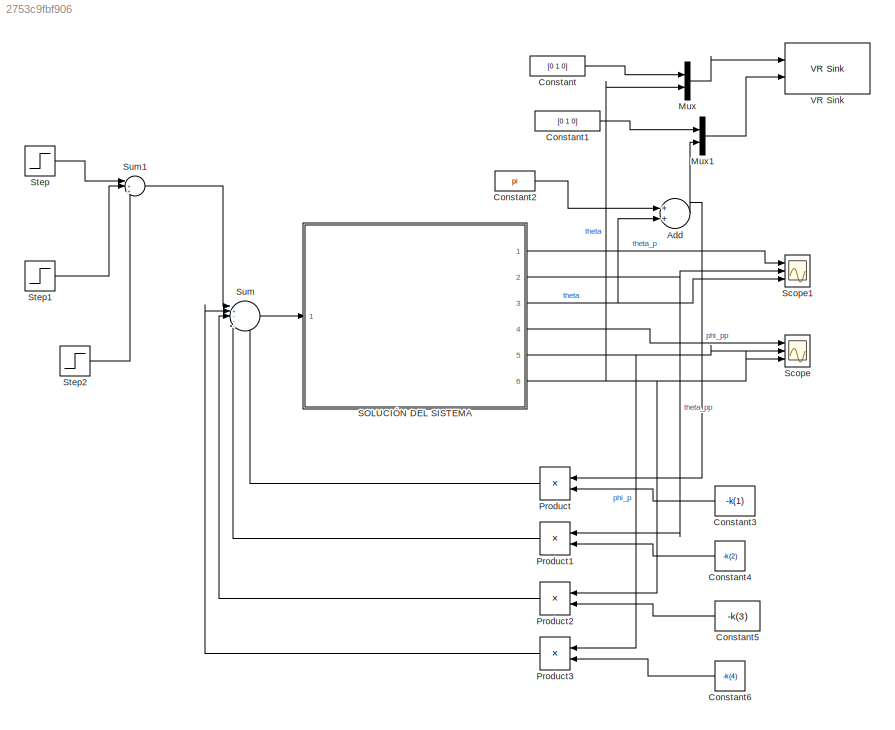
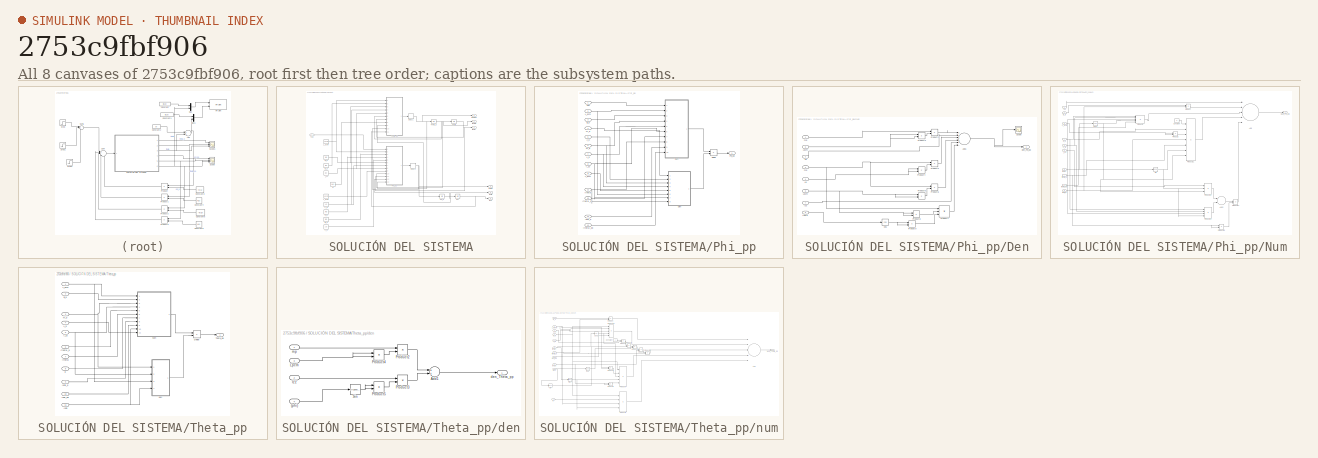
[diagram: thumbnail index - all 8 canvases of the model, root first then tree order]
MODEL slx_2753c9fbf906
KIND model
CONFIG AbsTol = auto
CONFIG EnableMultiTasking = off
CONFIG FixedStep = 0.002
CONFIG MaxStep = auto
CONFIG MinStep = auto
CONFIG RelTol = 1e-3
CONFIG SampleTimeConstraint = Unconstrained
CONFIG Solver = ode4
CONFIG SolverName = ode4
CONFIG StartTime = 0.0
CONFIG StopTime = 1.5
BLOCK [Sum] Add
  InputSameDT = off
  OutDataTypeStr = Inherit: Inherit via internal rule
  Ports = [2, 1]
  SaturateOnIntegerOverflow = off
BLOCK [Constant] Constant
  Value = [0 1 0]
BLOCK [Constant] Constant1
  Value = [0 1 0]
BLOCK [Constant] Constant2
  Value = pi
BLOCK [Constant] Constant3
  Value = -k(1)
BLOCK [Constant] Constant4
  Value = -k(2)
BLOCK [Constant] Constant5
  Value = -k(3)
BLOCK [Constant] Constant6
  Value = -k(4)
BLOCK [Mux] Mux
  DisplayOption = bar
  Inputs = 2
  Ports = [2, 1]
BLOCK [Mux] Mux1
  DisplayOption = bar
  Inputs = 2
  Ports = [2, 1]
BLOCK [Product] Product
  InputSameDT = off
  OutDataTypeStr = Inherit: Inherit via internal rule
  Ports = [2, 1]
  RndMeth = Floor
  SaturateOnIntegerOverflow = off
BLOCK [Product] Product1
  InputSameDT = off
  OutDataTypeStr = Inherit: Inherit via internal rule
  Ports = [2, 1]
  RndMeth = Floor
  SaturateOnIntegerOverflow = off
BLOCK [Product] Product2
  InputSameDT = off
  OutDataTypeStr = Inherit: Inherit via internal rule
  Ports = [2, 1]
  RndMeth = Floor
  SaturateOnIntegerOverflow = off
BLOCK [Product] Product3
  InputSameDT = off
  OutDataTypeStr = Inherit: Inherit via internal rule
  Ports = [2, 1]
  RndMeth = Floor
  SaturateOnIntegerOverflow = off
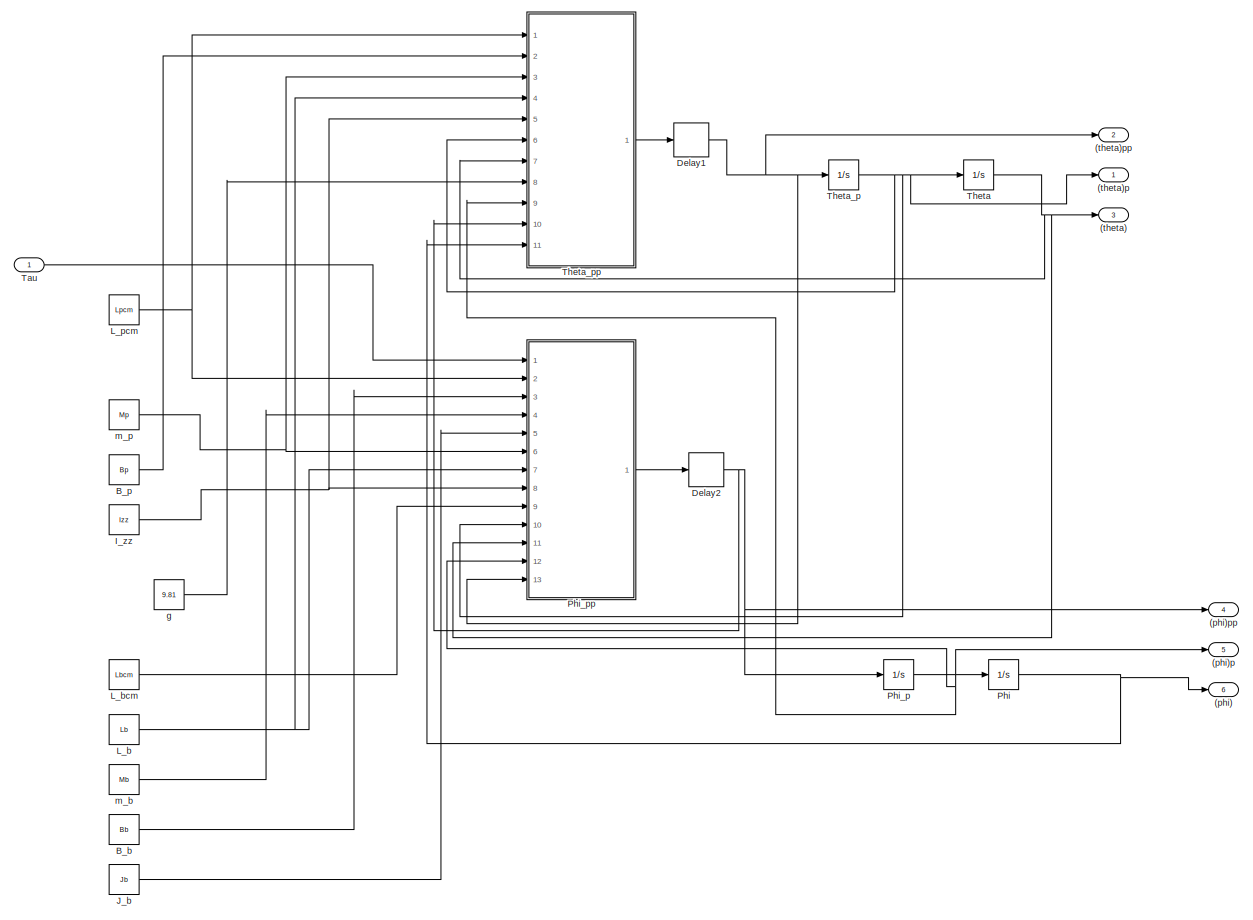
[diagram: SOLUCIÓN DEL SISTEMA - part 1/1, most of the canvas]
BLOCK [SubSystem] SOLUCIÓN DEL SISTEMA
  Ports = [1, 6]
  RequestExecContextInheritance = off
  Variant = off
BLOCK [Outport] SOLUCIÓN DEL SISTEMA/(phi)
  IconDisplay = Port number
  Port = 6
BLOCK [Outport] SOLUCIÓN DEL SISTEMA/(phi)p
  IconDisplay = Port number
  Port = 5
BLOCK [Outport] SOLUCIÓN DEL SISTEMA/(phi)pp 
  IconDisplay = Port number
  Port = 4
BLOCK [Outport] SOLUCIÓN DEL SISTEMA/(theta)
  IconDisplay = Port number
  Port = 3
BLOCK [Outport] SOLUCIÓN DEL SISTEMA/(theta)p
  IconDisplay = Port number
BLOCK [Outport] SOLUCIÓN DEL SISTEMA/(theta)pp
  IconDisplay = Port number
  Port = 2
BLOCK [Constant] SOLUCIÓN DEL SISTEMA/B_b
  Value = Bb
BLOCK [Constant] SOLUCIÓN DEL SISTEMA/B_p
  Value = Bp
BLOCK [Delay] SOLUCIÓN DEL SISTEMA/Delay1
  DelayLength = 1
  InitialCondition = 0
  InputPortMap = u0
  Ports = [1, 1]
  SampleTime = 0.002
BLOCK [Delay] SOLUCIÓN DEL SISTEMA/Delay2
  DelayLength = 1
  InitialCondition = 0
  InputPortMap = u0
  Ports = [1, 1]
  SampleTime = 0.002
BLOCK [Constant] SOLUCIÓN DEL SISTEMA/I_zz
  Value = Izz
BLOCK [Constant] SOLUCIÓN DEL SISTEMA/J_b
  Value = Jb
BLOCK [Constant] SOLUCIÓN DEL SISTEMA/L_b
  Value = Lb
BLOCK [Constant] SOLUCIÓN DEL SISTEMA/L_bcm
  Value = Lbcm
BLOCK [Constant] SOLUCIÓN DEL SISTEMA/L_pcm
  Value = Lpcm
BLOCK [Integrator] SOLUCIÓN DEL SISTEMA/Phi
  Ports = [1, 1]
BLOCK [Integrator] SOLUCIÓN DEL SISTEMA/Phi_p
  Ports = [1, 1]
BLOCK [SubSystem] SOLUCIÓN DEL SISTEMA/Phi_pp
  Ports = [13, 1]
  RequestExecContextInheritance = off
  Variant = off
BLOCK [Inport] SOLUCIÓN DEL SISTEMA/Phi_pp/ (theta)_pp
  IconDisplay = Port number
  Port = 13
BLOCK [Inport] SOLUCIÓN DEL SISTEMA/Phi_pp/(phi)_p
  IconDisplay = Port number
  Port = 12
BLOCK [Inport] SOLUCIÓN DEL SISTEMA/Phi_pp/(theta)
  IconDisplay = Port number
  Port = 11
BLOCK [Inport] SOLUCIÓN DEL SISTEMA/Phi_pp/(theta)_p
  IconDisplay = Port number
  Port = 10
BLOCK [Inport] SOLUCIÓN DEL SISTEMA/Phi_pp/B_b
  IconDisplay = Port number
  Port = 3
BLOCK [SubSystem] SOLUCIÓN DEL SISTEMA/Phi_pp/Den
  Ports = [8, 1]
  RequestExecContextInheritance = off
  Variant = off
BLOCK [Sum] SOLUCIÓN DEL SISTEMA/Phi_pp/Den/Add1
  InputSameDT = off
  Inputs = +++++-
  OutDataTypeStr = Inherit: Inherit via internal rule
  Ports = [6, 1]
  SaturateOnIntegerOverflow = off
BLOCK [Trigonometry] SOLUCIÓN DEL SISTEMA/Phi_pp/Den/Cos
  Operator = cos
  Ports = [1, 1]
BLOCK [Inport] SOLUCIÓN DEL SISTEMA/Phi_pp/Den/Izz
  IconDisplay = Port number
  Port = 7
BLOCK [Inport] SOLUCIÓN DEL SISTEMA/Phi_pp/Den/Jb 
  IconDisplay = Port number
  Port = 2
BLOCK [Inport] SOLUCIÓN DEL SISTEMA/Phi_pp/Den/Lb
  IconDisplay = Port number
  Port = 4
BLOCK [Inport] SOLUCIÓN DEL SISTEMA/Phi_pp/Den/Lbcm
  IconDisplay = Port number
  Port = 5
BLOCK [Inport] SOLUCIÓN DEL SISTEMA/Phi_pp/Den/Lpcm
  IconDisplay = Port number
  Port = 6
BLOCK [Product] SOLUCIÓN DEL SISTEMA/Phi_pp/Den/Product1
  InputSameDT = off
  OutDataTypeStr = Inherit: Inherit via internal rule
  Ports = [2, 1]
  RndMeth = Floor
  SaturateOnIntegerOverflow = off
BLOCK [Product] SOLUCIÓN DEL SISTEMA/Phi_pp/Den/Product2
  InputSameDT = off
  OutDataTypeStr = Inherit: Inherit via internal rule
  Ports = [2, 1]
  RndMeth = Floor
  SaturateOnIntegerOverflow = off
BLOCK [Product] SOLUCIÓN DEL SISTEMA/Phi_pp/Den/Product3
  InputSameDT = off
  OutDataTypeStr = Inherit: Inherit via internal rule
  Ports = [2, 1]
  RndMeth = Floor
  SaturateOnIntegerOverflow = off
BLOCK [Product] SOLUCIÓN DEL SISTEMA/Phi_pp/Den/Product4
  InputSameDT = off
  OutDataTypeStr = Inherit: Inherit via internal rule
  Ports = [2, 1]
  RndMeth = Floor
  SaturateOnIntegerOverflow = off
BLOCK [Product] SOLUCIÓN DEL SISTEMA/Phi_pp/Den/Product5
  InputSameDT = off
  OutDataTypeStr = Inherit: Inherit via internal rule
  Ports = [2, 1]
  RndMeth = Floor
  SaturateOnIntegerOverflow = off
BLOCK [Product] SOLUCIÓN DEL SISTEMA/Phi_pp/Den/Product6
  InputSameDT = off
  OutDataTypeStr = Inherit: Inherit via internal rule
  Ports = [2, 1]
  RndMeth = Floor
  SaturateOnIntegerOverflow = off
BLOCK [Product] SOLUCIÓN DEL SISTEMA/Phi_pp/Den/Product7
  InputSameDT = off
  Inputs = 3
  OutDataTypeStr = Inherit: Inherit via internal rule
  Ports = [3, 1]
  RndMeth = Floor
  SaturateOnIntegerOverflow = off
BLOCK [Product] SOLUCIÓN DEL SISTEMA/Phi_pp/Den/Product8
  InputSameDT = off
  OutDataTypeStr = Inherit: Inherit via internal rule
  Ports = [2, 1]
  RndMeth = Floor
  SaturateOnIntegerOverflow = off
BLOCK [Product] SOLUCIÓN DEL SISTEMA/Phi_pp/Den/Product9
  InputSameDT = off
  OutDataTypeStr = Inherit: Inherit via internal rule
  Ports = [2, 1]
  RndMeth = Floor
  SaturateOnIntegerOverflow = off
BLOCK [Scope] SOLUCIÓN DEL SISTEMA/Phi_pp/Den/Scope
  NumInputPorts = 1
  Ports = [1]
  ScopeSpecificationString = Simulink.scopes.TimeScopeBlockCfg('CurrentConfiguration', extmgr.ConfigurationSet(extmgr.Configuration('Core','General UI',true),extmgr.Configuration('Core','Source UI',true),extmgr.Configuration('Sources','WiredSimulink',true,'DataLoggingVariableName','ScopeData1'),extmgr.Configuration('Visuals','Time Domain',true,'SerializedDisplays',{struct('MinYLimReal','0.00043','MaxYLimReal','0.00054','YLabe...<+1380ch>
BLOCK [Outport] SOLUCIÓN DEL SISTEMA/Phi_pp/Den/den_Phi_pp 
  IconDisplay = Port number
BLOCK [Inport] SOLUCIÓN DEL SISTEMA/Phi_pp/Den/mb
  IconDisplay = Port number
BLOCK [Inport] SOLUCIÓN DEL SISTEMA/Phi_pp/Den/mp
  IconDisplay = Port number
  Port = 3
BLOCK [Inport] SOLUCIÓN DEL SISTEMA/Phi_pp/Den/theta
  IconDisplay = Port number
  Port = 8
BLOCK [Product] SOLUCIÓN DEL SISTEMA/Phi_pp/Divide
  InputSameDT = off
  Inputs = */
  OutDataTypeStr = Inherit: Inherit via internal rule
  Ports = [2, 1]
  RndMeth = Floor
  SaturateOnIntegerOverflow = off
BLOCK [Inport] SOLUCIÓN DEL SISTEMA/Phi_pp/I_zz
  IconDisplay = Port number
  Port = 8
BLOCK [Inport] SOLUCIÓN DEL SISTEMA/Phi_pp/J_b
  IconDisplay = Port number
  Port = 5
BLOCK [Inport] SOLUCIÓN DEL SISTEMA/Phi_pp/L_b 
  IconDisplay = Port number
  Port = 7
BLOCK [Inport] SOLUCIÓN DEL SISTEMA/Phi_pp/L_bcm
  IconDisplay = Port number
  Port = 9
BLOCK [Inport] SOLUCIÓN DEL SISTEMA/Phi_pp/L_pcm
  IconDisplay = Port number
  Port = 2
BLOCK [SubSystem] SOLUCIÓN DEL SISTEMA/Phi_pp/Num
  Ports = [10, 1]
  RequestExecContextInheritance = off
  Variant = off
BLOCK [Inport] SOLUCIÓN DEL SISTEMA/Phi_pp/Num/(phi)_p
  IconDisplay = Port number
  Port = 9
BLOCK [Inport] SOLUCIÓN DEL SISTEMA/Phi_pp/Num/(theta)
  IconDisplay = Port number
  Port = 8
BLOCK [Inport] SOLUCIÓN DEL SISTEMA/Phi_pp/Num/(theta)_p
  IconDisplay = Port number
  Port = 7
BLOCK [Inport] SOLUCIÓN DEL SISTEMA/Phi_pp/Num/(theta)_pp
  IconDisplay = Port number
  Port = 10
BLOCK [Sum] SOLUCIÓN DEL SISTEMA/Phi_pp/Num/Add
  InputSameDT = off
  Inputs = +----
  OutDataTypeStr = Inherit: Inherit via internal rule
  Ports = [5, 1]
  SaturateOnIntegerOverflow = off
BLOCK [Sum] SOLUCIÓN DEL SISTEMA/Phi_pp/Num/Add2
  InputSameDT = off
  Inputs = +-
  OutDataTypeStr = Inherit: Inherit via internal rule
  Ports = [2, 1]
  SaturateOnIntegerOverflow = off
BLOCK [Inport] SOLUCIÓN DEL SISTEMA/Phi_pp/Num/B_b
  IconDisplay = Port number
  Port = 3
BLOCK [Constant] SOLUCIÓN DEL SISTEMA/Phi_pp/Num/Constant
  Value = 2
BLOCK [Trigonometry] SOLUCIÓN DEL SISTEMA/Phi_pp/Num/Cos1
  Operator = cos
  Ports = [1, 1]
BLOCK [Inport] SOLUCIÓN DEL SISTEMA/Phi_pp/Num/I_zz
  IconDisplay = Port number
  Port = 6
BLOCK [Inport] SOLUCIÓN DEL SISTEMA/Phi_pp/Num/L_b 
  IconDisplay = Port number
  Port = 5
BLOCK [Inport] SOLUCIÓN DEL SISTEMA/Phi_pp/Num/L_pcm
  IconDisplay = Port number
  Port = 2
BLOCK [Outport] SOLUCIÓN DEL SISTEMA/Phi_pp/Num/Num_Phi_pp
  IconDisplay = Port number
BLOCK [Product] SOLUCIÓN DEL SISTEMA/Phi_pp/Num/Product
  InputSameDT = off
  OutDataTypeStr = Inherit: Inherit via internal rule
  Ports = [2, 1]
  RndMeth = Floor
  SaturateOnIntegerOverflow = off
BLOCK [Product] SOLUCIÓN DEL SISTEMA/Phi_pp/Num/Product1
  InputSameDT = off
  Inputs = 5
  OutDataTypeStr = Inherit: Inherit via internal rule
  Ports = [5, 1]
  RndMeth = Floor
  SaturateOnIntegerOverflow = off
BLOCK [Product] SOLUCIÓN DEL SISTEMA/Phi_pp/Num/Product11
  InputSameDT = off
  Inputs = 7
  OutDataTypeStr = Inherit: Inherit via internal rule
  Ports = [7, 1]
  RndMeth = Floor
  SaturateOnIntegerOverflow = off
BLOCK [Product] SOLUCIÓN DEL SISTEMA/Phi_pp/Num/Product12
  InputSameDT = off
  Inputs = 3
  OutDataTypeStr = Inherit: Inherit via internal rule
  Ports = [3, 1]
  RndMeth = Floor
  SaturateOnIntegerOverflow = off
BLOCK [Product] SOLUCIÓN DEL SISTEMA/Phi_pp/Num/Product13
  InputSameDT = off
  Inputs = 4
  OutDataTypeStr = Inherit: Inherit via internal rule
  Ports = [4, 1]
  RndMeth = Floor
  SaturateOnIntegerOverflow = off
BLOCK [Product] SOLUCIÓN DEL SISTEMA/Phi_pp/Num/Product14
  InputSameDT = off
  OutDataTypeStr = Inherit: Inherit via internal rule
  Ports = [2, 1]
  RndMeth = Floor
  SaturateOnIntegerOverflow = off
BLOCK [Product] SOLUCIÓN DEL SISTEMA/Phi_pp/Num/Product15
  InputSameDT = off
  OutDataTypeStr = Inherit: Inherit via internal rule
  Ports = [2, 1]
  RndMeth = Floor
  SaturateOnIntegerOverflow = off
BLOCK [Product] SOLUCIÓN DEL SISTEMA/Phi_pp/Num/Product2
  InputSameDT = off
  OutDataTypeStr = Inherit: Inherit via internal rule
  Ports = [2, 1]
  RndMeth = Floor
  SaturateOnIntegerOverflow = off
BLOCK [Trigonometry] SOLUCIÓN DEL SISTEMA/Phi_pp/Num/Sin
  Ports = [1, 1]
BLOCK [Inport] SOLUCIÓN DEL SISTEMA/Phi_pp/Num/Tau
  IconDisplay = Port number
BLOCK [Inport] SOLUCIÓN DEL SISTEMA/Phi_pp/Num/m_p
  IconDisplay = Port number
  Port = 4
BLOCK [Outport] SOLUCIÓN DEL SISTEMA/Phi_pp/Phi_pp
  IconDisplay = Port number
BLOCK [Inport] SOLUCIÓN DEL SISTEMA/Phi_pp/Tau
  IconDisplay = Port number
BLOCK [Inport] SOLUCIÓN DEL SISTEMA/Phi_pp/m_b
  IconDisplay = Port number
  Port = 4
BLOCK [Inport] SOLUCIÓN DEL SISTEMA/Phi_pp/m_p
  IconDisplay = Port number
  Port = 6
BLOCK [Inport] SOLUCIÓN DEL SISTEMA/Tau
  IconDisplay = Port number
BLOCK [Integrator] SOLUCIÓN DEL SISTEMA/Theta
  InitialCondition = pi
  Ports = [1, 1]
BLOCK [Integrator] SOLUCIÓN DEL SISTEMA/Theta_p
  Ports = [1, 1]
BLOCK [SubSystem] SOLUCIÓN DEL SISTEMA/Theta_pp
  Ports = [11, 1]
  RequestExecContextInheritance = off
  Variant = off
BLOCK [Inport] SOLUCIÓN DEL SISTEMA/Theta_pp/(phi)
  IconDisplay = Port number
  Port = 11
BLOCK [Inport] SOLUCIÓN DEL SISTEMA/Theta_pp/(phi)_p
  IconDisplay = Port number
  Port = 9
BLOCK [Inport] SOLUCIÓN DEL SISTEMA/Theta_pp/(phi)_pp
  IconDisplay = Port number
  Port = 10
BLOCK [Inport] SOLUCIÓN DEL SISTEMA/Theta_pp/(theta)
  IconDisplay = Port number
  Port = 7
BLOCK [Inport] SOLUCIÓN DEL SISTEMA/Theta_pp/(theta)_p
  IconDisplay = Port number
  Port = 6
BLOCK [Inport] SOLUCIÓN DEL SISTEMA/Theta_pp/B_p
  IconDisplay = Port number
  Port = 2
BLOCK [Product] SOLUCIÓN DEL SISTEMA/Theta_pp/Divide
  InputSameDT = off
  Inputs = */
  OutDataTypeStr = Inherit: Inherit via internal rule
  Ports = [2, 1]
  RndMeth = Floor
  SaturateOnIntegerOverflow = off
BLOCK [Inport] SOLUCIÓN DEL SISTEMA/Theta_pp/I_zz
  IconDisplay = Port number
  Port = 5
BLOCK [Inport] SOLUCIÓN DEL SISTEMA/Theta_pp/L_b 
  IconDisplay = Port number
  Port = 4
BLOCK [Inport] SOLUCIÓN DEL SISTEMA/Theta_pp/L_pcm
  IconDisplay = Port number
BLOCK [Outport] SOLUCIÓN DEL SISTEMA/Theta_pp/Theta_pp
  IconDisplay = Port number
BLOCK [SubSystem] SOLUCIÓN DEL SISTEMA/Theta_pp/den
  Ports = [4, 1]
  RequestExecContextInheritance = off
  Variant = off
BLOCK [Inport] SOLUCIÓN DEL SISTEMA/Theta_pp/den/(phi)
  IconDisplay = Port number
  Port = 4
BLOCK [Sum] SOLUCIÓN DEL SISTEMA/Theta_pp/den/Add1
  InputSameDT = off
  OutDataTypeStr = Inherit: Inherit via internal rule
  Ports = [2, 1]
  SaturateOnIntegerOverflow = off
BLOCK [Inport] SOLUCIÓN DEL SISTEMA/Theta_pp/den/Izz 
  IconDisplay = Port number
  Port = 2
BLOCK [Inport] SOLUCIÓN DEL SISTEMA/Theta_pp/den/Lpcm
  IconDisplay = Port number
  Port = 3
BLOCK [Product] SOLUCIÓN DEL SISTEMA/Theta_pp/den/Product2
  InputSameDT = off
  OutDataTypeStr = Inherit: Inherit via internal rule
  Ports = [2, 1]
  RndMeth = Floor
  SaturateOnIntegerOverflow = off
BLOCK [Product] SOLUCIÓN DEL SISTEMA/Theta_pp/den/Product3
  InputSameDT = off
  OutDataTypeStr = Inherit: Inherit via internal rule
  Ports = [2, 1]
  RndMeth = Floor
  SaturateOnIntegerOverflow = off
BLOCK [Product] SOLUCIÓN DEL SISTEMA/Theta_pp/den/Product4
  InputSameDT = off
  OutDataTypeStr = Inherit: Inherit via internal rule
  Ports = [2, 1]
  RndMeth = Floor
  SaturateOnIntegerOverflow = off
BLOCK [Product] SOLUCIÓN DEL SISTEMA/Theta_pp/den/Product5
  InputSameDT = off
  OutDataTypeStr = Inherit: Inherit via internal rule
  Ports = [2, 1]
  RndMeth = Floor
  SaturateOnIntegerOverflow = off
BLOCK [Trigonometry] SOLUCIÓN DEL SISTEMA/Theta_pp/den/Sin
  Ports = [1, 1]
BLOCK [Outport] SOLUCIÓN DEL SISTEMA/Theta_pp/den/den_Theta_pp 
  IconDisplay = Port number
BLOCK [Inport] SOLUCIÓN DEL SISTEMA/Theta_pp/den/mp
  IconDisplay = Port number
BLOCK [Inport] SOLUCIÓN DEL SISTEMA/Theta_pp/g
  IconDisplay = Port number
  Port = 8
BLOCK [Inport] SOLUCIÓN DEL SISTEMA/Theta_pp/m_p
  IconDisplay = Port number
  Port = 3
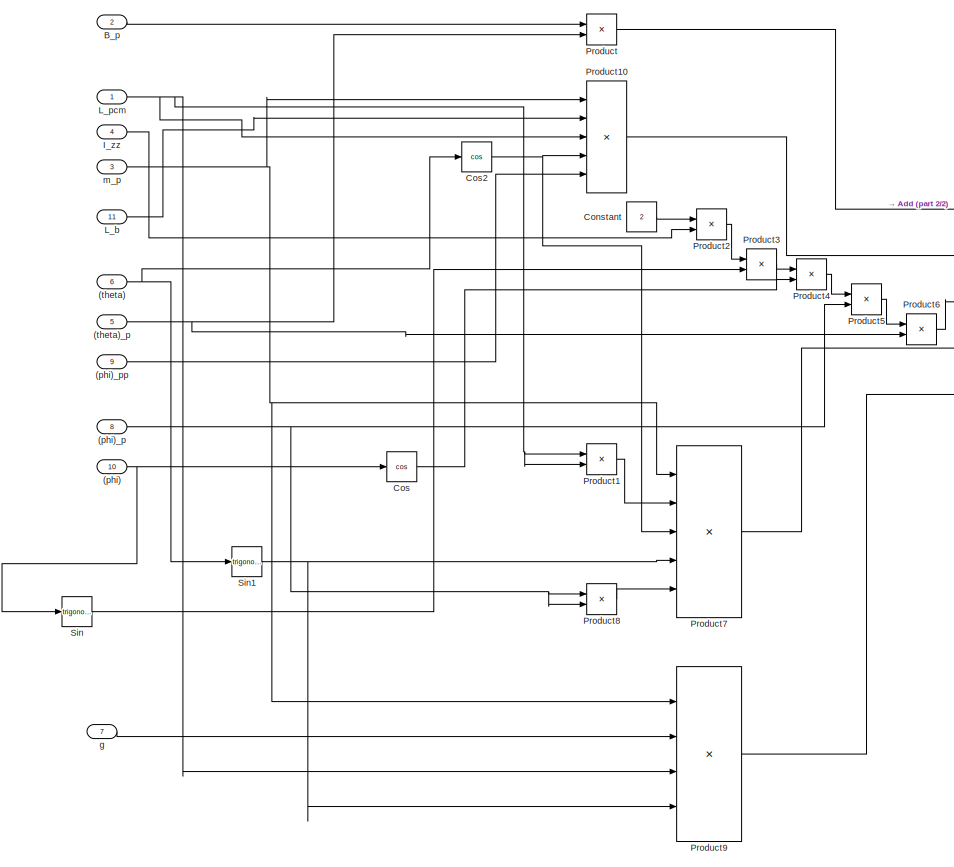
[diagram: SOLUCIÓN DEL SISTEMA/Theta_pp/num - part 1/2, left side, full height]
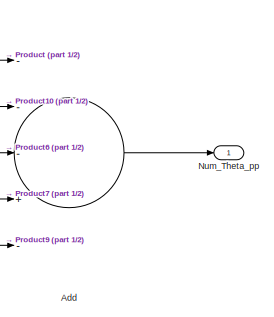
[diagram: SOLUCIÓN DEL SISTEMA/Theta_pp/num - part 2/2, middle right region]
BLOCK [SubSystem] SOLUCIÓN DEL SISTEMA/Theta_pp/num
  Ports = [11, 1]
  RequestExecContextInheritance = off
  Variant = off
BLOCK [Inport] SOLUCIÓN DEL SISTEMA/Theta_pp/num/(phi)
  IconDisplay = Port number
  Port = 10
BLOCK [Inport] SOLUCIÓN DEL SISTEMA/Theta_pp/num/(phi)_p
  IconDisplay = Port number
  Port = 8
BLOCK [Inport] SOLUCIÓN DEL SISTEMA/Theta_pp/num/(phi)_pp
  IconDisplay = Port number
  Port = 9
BLOCK [Inport] SOLUCIÓN DEL SISTEMA/Theta_pp/num/(theta)
  IconDisplay = Port number
  Port = 6
BLOCK [Inport] SOLUCIÓN DEL SISTEMA/Theta_pp/num/(theta)_p
  IconDisplay = Port number
  Port = 5
BLOCK [Sum] SOLUCIÓN DEL SISTEMA/Theta_pp/num/Add
  InputSameDT = off
  Inputs = ---+-
  OutDataTypeStr = Inherit: Inherit via internal rule
  Ports = [5, 1]
  SaturateOnIntegerOverflow = off
BLOCK [Inport] SOLUCIÓN DEL SISTEMA/Theta_pp/num/B_p
  IconDisplay = Port number
  Port = 2
BLOCK [Constant] SOLUCIÓN DEL SISTEMA/Theta_pp/num/Constant
  Value = 2
BLOCK [Trigonometry] SOLUCIÓN DEL SISTEMA/Theta_pp/num/Cos
  Operator = cos
  Ports = [1, 1]
BLOCK [Trigonometry] SOLUCIÓN DEL SISTEMA/Theta_pp/num/Cos2
  Operator = cos
  Ports = [1, 1]
BLOCK [Inport] SOLUCIÓN DEL SISTEMA/Theta_pp/num/I_zz
  IconDisplay = Port number
  Port = 4
BLOCK [Inport] SOLUCIÓN DEL SISTEMA/Theta_pp/num/L_b
  IconDisplay = Port number
  Port = 11
BLOCK [Inport] SOLUCIÓN DEL SISTEMA/Theta_pp/num/L_pcm
  IconDisplay = Port number
BLOCK [Outport] SOLUCIÓN DEL SISTEMA/Theta_pp/num/Num_Theta_pp
  IconDisplay = Port number
BLOCK [Product] SOLUCIÓN DEL SISTEMA/Theta_pp/num/Product
  InputSameDT = off
  OutDataTypeStr = Inherit: Inherit via internal rule
  Ports = [2, 1]
  RndMeth = Floor
  SaturateOnIntegerOverflow = off
BLOCK [Product] SOLUCIÓN DEL SISTEMA/Theta_pp/num/Product1
  InputSameDT = off
  OutDataTypeStr = Inherit: Inherit via internal rule
  Ports = [2, 1]
  RndMeth = Floor
  SaturateOnIntegerOverflow = off
BLOCK [Product] SOLUCIÓN DEL SISTEMA/Theta_pp/num/Product10
  InputSameDT = off
  Inputs = 5
  OutDataTypeStr = Inherit: Inherit via internal rule
  Ports = [5, 1]
  RndMeth = Floor
  SaturateOnIntegerOverflow = off
BLOCK [Product] SOLUCIÓN DEL SISTEMA/Theta_pp/num/Product2
  InputSameDT = off
  OutDataTypeStr = Inherit: Inherit via internal rule
  Ports = [2, 1]
  RndMeth = Floor
  SaturateOnIntegerOverflow = off
BLOCK [Product] SOLUCIÓN DEL SISTEMA/Theta_pp/num/Product3
  InputSameDT = off
  OutDataTypeStr = Inherit: Inherit via internal rule
  Ports = [2, 1]
  RndMeth = Floor
  SaturateOnIntegerOverflow = off
BLOCK [Product] SOLUCIÓN DEL SISTEMA/Theta_pp/num/Product4
  InputSameDT = off
  OutDataTypeStr = Inherit: Inherit via internal rule
  Ports = [2, 1]
  RndMeth = Floor
  SaturateOnIntegerOverflow = off
BLOCK [Product] SOLUCIÓN DEL SISTEMA/Theta_pp/num/Product5
  InputSameDT = off
  OutDataTypeStr = Inherit: Inherit via internal rule
  Ports = [2, 1]
  RndMeth = Floor
  SaturateOnIntegerOverflow = off
BLOCK [Product] SOLUCIÓN DEL SISTEMA/Theta_pp/num/Product6
  InputSameDT = off
  OutDataTypeStr = Inherit: Inherit via internal rule
  Ports = [2, 1]
  RndMeth = Floor
  SaturateOnIntegerOverflow = off
BLOCK [Product] SOLUCIÓN DEL SISTEMA/Theta_pp/num/Product7
  InputSameDT = off
  Inputs = 5
  OutDataTypeStr = Inherit: Inherit via internal rule
  Ports = [5, 1]
  RndMeth = Floor
  SaturateOnIntegerOverflow = off
BLOCK [Product] SOLUCIÓN DEL SISTEMA/Theta_pp/num/Product8
  InputSameDT = off
  OutDataTypeStr = Inherit: Inherit via internal rule
  Ports = [2, 1]
  RndMeth = Floor
  SaturateOnIntegerOverflow = off
BLOCK [Product] SOLUCIÓN DEL SISTEMA/Theta_pp/num/Product9
  InputSameDT = off
  Inputs = 4
  OutDataTypeStr = Inherit: Inherit via internal rule
  Ports = [4, 1]
  RndMeth = Floor
  SaturateOnIntegerOverflow = off
BLOCK [Trigonometry] SOLUCIÓN DEL SISTEMA/Theta_pp/num/Sin
  Ports = [1, 1]
BLOCK [Trigonometry] SOLUCIÓN DEL SISTEMA/Theta_pp/num/Sin1
  Ports = [1, 1]
BLOCK [Inport] SOLUCIÓN DEL SISTEMA/Theta_pp/num/g
  IconDisplay = Port number
  Port = 7
BLOCK [Inport] SOLUCIÓN DEL SISTEMA/Theta_pp/num/m_p
  IconDisplay = Port number
  Port = 3
BLOCK [Constant] SOLUCIÓN DEL SISTEMA/g
  Value = 9.81
BLOCK [Constant] SOLUCIÓN DEL SISTEMA/m_b
  Value = Mb
BLOCK [Constant] SOLUCIÓN DEL SISTEMA/m_p
  Value = Mp
BLOCK [Scope] Scope
  NumInputPorts = 3
  Ports = [3]
  ScopeSpecificationString = Simulink.scopes.TimeScopeBlockCfg('CurrentConfiguration', extmgr.ConfigurationSet(extmgr.Configuration('Core','General UI',true),extmgr.Configuration('Core','Source UI',true),extmgr.Configuration('Sources','WiredSimulink',true),extmgr.Configuration('Visuals','Time Domain',true,'SerializedDisplays',{struct('MinYLimReal','-20.1865','MaxYLimReal','14.29017','YLabelReal','','MinYLimMag','0.00000','Max...<+1484ch>
BLOCK [Scope] Scope1
  NumInputPorts = 3
  Ports = [3]
  ScopeSpecificationString = Simulink.scopes.TimeScopeBlockCfg('CurrentConfiguration', extmgr.ConfigurationSet(extmgr.Configuration('Core','General UI',true,'FigureColor',[0 0 0]),extmgr.Configuration('Core','Source UI',true),extmgr.Configuration('Sources','WiredSimulink',true,'DataLoggingVariableName','ScopeData1'),extmgr.Configuration('Visuals','Time Domain',true,'SerializedDisplays',{struct('MinYLimReal','-0.3927','MaxYLim...<+1671ch>
BLOCK [Step] Step
  After = 0
  SampleTime = 0
BLOCK [Step] Step1
  After = 0
  SampleTime = 0
BLOCK [Step] Step2
  After = 0
  SampleTime = 0
BLOCK [Sum] Sum
  IconShape = round
  InputSameDT = off
  Inputs = |+----
  OutDataTypeStr = Inherit: Inherit via internal rule
  Ports = [5, 1]
  SaturateOnIntegerOverflow = off
BLOCK [Sum] Sum1
  IconShape = round
  InputSameDT = off
  Inputs = |+++
  OutDataTypeStr = Inherit: Inherit via internal rule
  Ports = [3, 1]
  SaturateOnIntegerOverflow = off
BLOCK [Reference] VR Sink  REF=vrlib/VR Sink
  InstantiateOnLoad = on
  Ports = [2]
  SourceBlock = vrlib/VR Sink
  SourceProductBaseCode = VR
  SourceProductName = Simulink 3D Animation
  SourceType = Virtual Reality Sink
NET Add:1 -> Mux1:2, Product:1
LINE Constant1:1 -> Mux1:1
LINE Constant2:1 -> Add:1
LINE Constant3:1 -> Product:2
LINE Constant4:1 -> Product1:2
LINE Constant5:1 -> Product2:2
LINE Constant6:1 -> Product3:2
LINE Constant:1 -> Mux:1
LINE Mux1:1 -> VR Sink:2
LINE Mux:1 -> VR Sink:1
LINE Product1:1 -> Sum:4
LINE Product2:1 -> Sum:3
LINE Product3:1 -> Sum:2
LINE Product:1 -> Sum:5
LINE SOLUCIÓN DEL SISTEMA/B_b:1 -> SOLUCIÓN DEL SISTEMA/Phi_pp:3
LINE SOLUCIÓN DEL SISTEMA/B_p:1 -> SOLUCIÓN DEL SISTEMA/Theta_pp:2
NET SOLUCIÓN DEL SISTEMA/Delay1:1 -> SOLUCIÓN DEL SISTEMA/(theta)pp:1, SOLUCIÓN DEL SISTEMA/Phi_pp:13, SOLUCIÓN DEL SISTEMA/Theta_p:1
NET SOLUCIÓN DEL SISTEMA/Delay2:1 -> SOLUCIÓN DEL SISTEMA/(phi)pp :1, SOLUCIÓN DEL SISTEMA/Phi_p:1, SOLUCIÓN DEL SISTEMA/Theta_pp:10
NET SOLUCIÓN DEL SISTEMA/I_zz:1 -> SOLUCIÓN DEL SISTEMA/Phi_pp:8, SOLUCIÓN DEL SISTEMA/Theta_pp:5
LINE SOLUCIÓN DEL SISTEMA/J_b:1 -> SOLUCIÓN DEL SISTEMA/Phi_pp:5
NET SOLUCIÓN DEL SISTEMA/L_b:1 -> SOLUCIÓN DEL SISTEMA/Phi_pp:7, SOLUCIÓN DEL SISTEMA/Theta_pp:4
LINE SOLUCIÓN DEL SISTEMA/L_bcm:1 -> SOLUCIÓN DEL SISTEMA/Phi_pp:9
NET SOLUCIÓN DEL SISTEMA/L_pcm:1 -> SOLUCIÓN DEL SISTEMA/Phi_pp:2, SOLUCIÓN DEL SISTEMA/Theta_pp:1
NET SOLUCIÓN DEL SISTEMA/Phi:1 -> SOLUCIÓN DEL SISTEMA/(phi):1, SOLUCIÓN DEL SISTEMA/Theta_pp:11
NET SOLUCIÓN DEL SISTEMA/Phi_p:1 -> SOLUCIÓN DEL SISTEMA/(phi)p:1, SOLUCIÓN DEL SISTEMA/Phi:1, SOLUCIÓN DEL SISTEMA/Phi_pp:12, SOLUCIÓN DEL SISTEMA/Theta_pp:9
LINE SOLUCIÓN DEL SISTEMA/Phi_pp/ (theta)_pp:1 -> SOLUCIÓN DEL SISTEMA/Phi_pp/Num:10
LINE SOLUCIÓN DEL SISTEMA/Phi_pp/(phi)_p:1 -> SOLUCIÓN DEL SISTEMA/Phi_pp/Num:9
NET SOLUCIÓN DEL SISTEMA/Phi_pp/(theta):1 -> SOLUCIÓN DEL SISTEMA/Phi_pp/Den:8, SOLUCIÓN DEL SISTEMA/Phi_pp/Num:8
LINE SOLUCIÓN DEL SISTEMA/Phi_pp/(theta)_p:1 -> SOLUCIÓN DEL SISTEMA/Phi_pp/Num:7
LINE SOLUCIÓN DEL SISTEMA/Phi_pp/B_b:1 -> SOLUCIÓN DEL SISTEMA/Phi_pp/Num:3
NET SOLUCIÓN DEL SISTEMA/Phi_pp/Den/Add1:1 -> SOLUCIÓN DEL SISTEMA/Phi_pp/Den/Scope:1, SOLUCIÓN DEL SISTEMA/Phi_pp/Den/den_Phi_pp :1
NET SOLUCIÓN DEL SISTEMA/Phi_pp/Den/Cos:1 -> SOLUCIÓN DEL SISTEMA/Phi_pp/Den/Product9:1, SOLUCIÓN DEL SISTEMA/Phi_pp/Den/Product9:2
LINE SOLUCIÓN DEL SISTEMA/Phi_pp/Den/Izz:1 -> SOLUCIÓN DEL SISTEMA/Phi_pp/Den/Add1:5
LINE SOLUCIÓN DEL SISTEMA/Phi_pp/Den/Jb :1 -> SOLUCIÓN DEL SISTEMA/Phi_pp/Den/Add1:2
NET SOLUCIÓN DEL SISTEMA/Phi_pp/Den/Lb:1 -> SOLUCIÓN DEL SISTEMA/Phi_pp/Den/Product4:1, SOLUCIÓN DEL SISTEMA/Phi_pp/Den/Product4:2
NET SOLUCIÓN DEL SISTEMA/Phi_pp/Den/Lbcm:1 -> SOLUCIÓN DEL SISTEMA/Phi_pp/Den/Product3:1, SOLUCIÓN DEL SISTEMA/Phi_pp/Den/Product3:2
NET SOLUCIÓN DEL SISTEMA/Phi_pp/Den/Lpcm:1 -> SOLUCIÓN DEL SISTEMA/Phi_pp/Den/Product5:1, SOLUCIÓN DEL SISTEMA/Phi_pp/Den/Product5:2, SOLUCIÓN DEL SISTEMA/Phi_pp/Den/Product8:1, SOLUCIÓN DEL SISTEMA/Phi_pp/Den/Product8:2
LINE SOLUCIÓN DEL SISTEMA/Phi_pp/Den/Product1:1 -> SOLUCIÓN DEL SISTEMA/Phi_pp/Den/Add1:1
LINE SOLUCIÓN DEL SISTEMA/Phi_pp/Den/Product2:1 -> SOLUCIÓN DEL SISTEMA/Phi_pp/Den/Add1:3
LINE SOLUCIÓN DEL SISTEMA/Phi_pp/Den/Product3:1 -> SOLUCIÓN DEL SISTEMA/Phi_pp/Den/Product1:2
LINE SOLUCIÓN DEL SISTEMA/Phi_pp/Den/Product4:1 -> SOLUCIÓN DEL SISTEMA/Phi_pp/Den/Product2:2
LINE SOLUCIÓN DEL SISTEMA/Phi_pp/Den/Product5:1 -> SOLUCIÓN DEL SISTEMA/Phi_pp/Den/Product6:2
LINE SOLUCIÓN DEL SISTEMA/Phi_pp/Den/Product6:1 -> SOLUCIÓN DEL SISTEMA/Phi_pp/Den/Add1:4
LINE SOLUCIÓN DEL SISTEMA/Phi_pp/Den/Product7:1 -> SOLUCIÓN DEL SISTEMA/Phi_pp/Den/Add1:6
LINE SOLUCIÓN DEL SISTEMA/Phi_pp/Den/Product8:1 -> SOLUCIÓN DEL SISTEMA/Phi_pp/Den/Product7:2
LINE SOLUCIÓN DEL SISTEMA/Phi_pp/Den/Product9:1 -> SOLUCIÓN DEL SISTEMA/Phi_pp/Den/Product7:3
LINE SOLUCIÓN DEL SISTEMA/Phi_pp/Den/mb:1 -> SOLUCIÓN DEL SISTEMA/Phi_pp/Den/Product1:1
NET SOLUCIÓN DEL SISTEMA/Phi_pp/Den/mp:1 -> SOLUCIÓN DEL SISTEMA/Phi_pp/Den/Product2:1, SOLUCIÓN DEL SISTEMA/Phi_pp/Den/Product6:1, SOLUCIÓN DEL SISTEMA/Phi_pp/Den/Product7:1
LINE SOLUCIÓN DEL SISTEMA/Phi_pp/Den/theta:1 -> SOLUCIÓN DEL SISTEMA/Phi_pp/Den/Cos:1
LINE SOLUCIÓN DEL SISTEMA/Phi_pp/Den:1 -> SOLUCIÓN DEL SISTEMA/Phi_pp/Divide:2
LINE SOLUCIÓN DEL SISTEMA/Phi_pp/Divide:1 -> SOLUCIÓN DEL SISTEMA/Phi_pp/Phi_pp:1
NET SOLUCIÓN DEL SISTEMA/Phi_pp/I_zz:1 -> SOLUCIÓN DEL SISTEMA/Phi_pp/Den:7, SOLUCIÓN DEL SISTEMA/Phi_pp/Num:6
LINE SOLUCIÓN DEL SISTEMA/Phi_pp/J_b:1 -> SOLUCIÓN DEL SISTEMA/Phi_pp/Den:2
NET SOLUCIÓN DEL SISTEMA/Phi_pp/L_b :1 -> SOLUCIÓN DEL SISTEMA/Phi_pp/Den:4, SOLUCIÓN DEL SISTEMA/Phi_pp/Num:5
LINE SOLUCIÓN DEL SISTEMA/Phi_pp/L_bcm:1 -> SOLUCIÓN DEL SISTEMA/Phi_pp/Den:5
NET SOLUCIÓN DEL SISTEMA/Phi_pp/L_pcm:1 -> SOLUCIÓN DEL SISTEMA/Phi_pp/Den:6, SOLUCIÓN DEL SISTEMA/Phi_pp/Num:2
NET SOLUCIÓN DEL SISTEMA/Phi_pp/Num/(phi)_p:1 -> SOLUCIÓN DEL SISTEMA/Phi_pp/Num/Product11:4, SOLUCIÓN DEL SISTEMA/Phi_pp/Num/Product:2
NET SOLUCIÓN DEL SISTEMA/Phi_pp/Num/(theta):1 -> SOLUCIÓN DEL SISTEMA/Phi_pp/Num/Cos1:1, SOLUCIÓN DEL SISTEMA/Phi_pp/Num/Sin:1
NET SOLUCIÓN DEL SISTEMA/Phi_pp/Num/(theta)_p:1 -> SOLUCIÓN DEL SISTEMA/Phi_pp/Num/Product11:5, SOLUCIÓN DEL SISTEMA/Phi_pp/Num/Product15:1, SOLUCIÓN DEL SISTEMA/Phi_pp/Num/Product15:2
LINE SOLUCIÓN DEL SISTEMA/Phi_pp/Num/(theta)_pp:1 -> SOLUCIÓN DEL SISTEMA/Phi_pp/Num/Product1:5
LINE SOLUCIÓN DEL SISTEMA/Phi_pp/Num/Add2:1 -> SOLUCIÓN DEL SISTEMA/Phi_pp/Num/Product14:1
LINE SOLUCIÓN DEL SISTEMA/Phi_pp/Num/Add:1 -> SOLUCIÓN DEL SISTEMA/Phi_pp/Num/Num_Phi_pp:1
LINE SOLUCIÓN DEL SISTEMA/Phi_pp/Num/B_b:1 -> SOLUCIÓN DEL SISTEMA/Phi_pp/Num/Product:1
LINE SOLUCIÓN DEL SISTEMA/Phi_pp/Num/Constant:1 -> SOLUCIÓN DEL SISTEMA/Phi_pp/Num/Product11:1
NET SOLUCIÓN DEL SISTEMA/Phi_pp/Num/Cos1:1 -> SOLUCIÓN DEL SISTEMA/Phi_pp/Num/Product11:7, SOLUCIÓN DEL SISTEMA/Phi_pp/Num/Product12:3, SOLUCIÓN DEL SISTEMA/Phi_pp/Num/Product1:4
LINE SOLUCIÓN DEL SISTEMA/Phi_pp/Num/I_zz:1 -> SOLUCIÓN DEL SISTEMA/Phi_pp/Num/Product12:1
NET SOLUCIÓN DEL SISTEMA/Phi_pp/Num/L_b :1 -> SOLUCIÓN DEL SISTEMA/Phi_pp/Num/Product13:2, SOLUCIÓN DEL SISTEMA/Phi_pp/Num/Product1:2
NET SOLUCIÓN DEL SISTEMA/Phi_pp/Num/L_pcm:1 -> SOLUCIÓN DEL SISTEMA/Phi_pp/Num/Product13:3, SOLUCIÓN DEL SISTEMA/Phi_pp/Num/Product1:3, SOLUCIÓN DEL SISTEMA/Phi_pp/Num/Product2:1, SOLUCIÓN DEL SISTEMA/Phi_pp/Num/Product2:2
LINE SOLUCIÓN DEL SISTEMA/Phi_pp/Num/Product11:1 -> SOLUCIÓN DEL SISTEMA/Phi_pp/Num/Add:4
LINE SOLUCIÓN DEL SISTEMA/Phi_pp/Num/Product12:1 -> SOLUCIÓN DEL SISTEMA/Phi_pp/Num/Add2:1
LINE SOLUCIÓN DEL SISTEMA/Phi_pp/Num/Product13:1 -> SOLUCIÓN DEL SISTEMA/Phi_pp/Num/Add2:2
LINE SOLUCIÓN DEL SISTEMA/Phi_pp/Num/Product14:1 -> SOLUCIÓN DEL SISTEMA/Phi_pp/Num/Add:5
LINE SOLUCIÓN DEL SISTEMA/Phi_pp/Num/Product15:1 -> SOLUCIÓN DEL SISTEMA/Phi_pp/Num/Product14:2
LINE SOLUCIÓN DEL SISTEMA/Phi_pp/Num/Product1:1 -> SOLUCIÓN DEL SISTEMA/Phi_pp/Num/Add:3
LINE SOLUCIÓN DEL SISTEMA/Phi_pp/Num/Product2:1 -> SOLUCIÓN DEL SISTEMA/Phi_pp/Num/Product11:3
LINE SOLUCIÓN DEL SISTEMA/Phi_pp/Num/Product:1 -> SOLUCIÓN DEL SISTEMA/Phi_pp/Num/Add:2
NET SOLUCIÓN DEL SISTEMA/Phi_pp/Num/Sin:1 -> SOLUCIÓN DEL SISTEMA/Phi_pp/Num/Product11:6, SOLUCIÓN DEL SISTEMA/Phi_pp/Num/Product12:2, SOLUCIÓN DEL SISTEMA/Phi_pp/Num/Product13:4
LINE SOLUCIÓN DEL SISTEMA/Phi_pp/Num/Tau:1 -> SOLUCIÓN DEL SISTEMA/Phi_pp/Num/Add:1
NET SOLUCIÓN DEL SISTEMA/Phi_pp/Num/m_p:1 -> SOLUCIÓN DEL SISTEMA/Phi_pp/Num/Product11:2, SOLUCIÓN DEL SISTEMA/Phi_pp/Num/Product13:1, SOLUCIÓN DEL SISTEMA/Phi_pp/Num/Product1:1
LINE SOLUCIÓN DEL SISTEMA/Phi_pp/Num:1 -> SOLUCIÓN DEL SISTEMA/Phi_pp/Divide:1
LINE SOLUCIÓN DEL SISTEMA/Phi_pp/Tau:1 -> SOLUCIÓN DEL SISTEMA/Phi_pp/Num:1
LINE SOLUCIÓN DEL SISTEMA/Phi_pp/m_b:1 -> SOLUCIÓN DEL SISTEMA/Phi_pp/Den:1
NET SOLUCIÓN DEL SISTEMA/Phi_pp/m_p:1 -> SOLUCIÓN DEL SISTEMA/Phi_pp/Den:3, SOLUCIÓN DEL SISTEMA/Phi_pp/Num:4
LINE SOLUCIÓN DEL SISTEMA/Phi_pp:1 -> SOLUCIÓN DEL SISTEMA/Delay2:1
LINE SOLUCIÓN DEL SISTEMA/Tau:1 -> SOLUCIÓN DEL SISTEMA/Phi_pp:1
NET SOLUCIÓN DEL SISTEMA/Theta:1 -> SOLUCIÓN DEL SISTEMA/(theta):1, SOLUCIÓN DEL SISTEMA/Phi_pp:11, SOLUCIÓN DEL SISTEMA/Theta_pp:7
NET SOLUCIÓN DEL SISTEMA/Theta_p:1 -> SOLUCIÓN DEL SISTEMA/(theta)p:1, SOLUCIÓN DEL SISTEMA/Phi_pp:10, SOLUCIÓN DEL SISTEMA/Theta:1, SOLUCIÓN DEL SISTEMA/Theta_pp:6
NET SOLUCIÓN DEL SISTEMA/Theta_pp/(phi):1 -> SOLUCIÓN DEL SISTEMA/Theta_pp/den:4, SOLUCIÓN DEL SISTEMA/Theta_pp/num:10
LINE SOLUCIÓN DEL SISTEMA/Theta_pp/(phi)_p:1 -> SOLUCIÓN DEL SISTEMA/Theta_pp/num:8
LINE SOLUCIÓN DEL SISTEMA/Theta_pp/(phi)_pp:1 -> SOLUCIÓN DEL SISTEMA/Theta_pp/num:9
LINE SOLUCIÓN DEL SISTEMA/Theta_pp/(theta):1 -> SOLUCIÓN DEL SISTEMA/Theta_pp/num:6
LINE SOLUCIÓN DEL SISTEMA/Theta_pp/(theta)_p:1 -> SOLUCIÓN DEL SISTEMA/Theta_pp/num:5
LINE SOLUCIÓN DEL SISTEMA/Theta_pp/B_p:1 -> SOLUCIÓN DEL SISTEMA/Theta_pp/num:2
LINE SOLUCIÓN DEL SISTEMA/Theta_pp/Divide:1 -> SOLUCIÓN DEL SISTEMA/Theta_pp/Theta_pp:1
NET SOLUCIÓN DEL SISTEMA/Theta_pp/I_zz:1 -> SOLUCIÓN DEL SISTEMA/Theta_pp/den:2, SOLUCIÓN DEL SISTEMA/Theta_pp/num:4
LINE SOLUCIÓN DEL SISTEMA/Theta_pp/L_b :1 -> SOLUCIÓN DEL SISTEMA/Theta_pp/num:11
NET SOLUCIÓN DEL SISTEMA/Theta_pp/L_pcm:1 -> SOLUCIÓN DEL SISTEMA/Theta_pp/den:3, SOLUCIÓN DEL SISTEMA/Theta_pp/num:1
LINE SOLUCIÓN DEL SISTEMA/Theta_pp/den/(phi):1 -> SOLUCIÓN DEL SISTEMA/Theta_pp/den/Sin:1
LINE SOLUCIÓN DEL SISTEMA/Theta_pp/den/Add1:1 -> SOLUCIÓN DEL SISTEMA/Theta_pp/den/den_Theta_pp :1
LINE SOLUCIÓN DEL SISTEMA/Theta_pp/den/Izz :1 -> SOLUCIÓN DEL SISTEMA/Theta_pp/den/Product3:1
NET SOLUCIÓN DEL SISTEMA/Theta_pp/den/Lpcm:1 -> SOLUCIÓN DEL SISTEMA/Theta_pp/den/Product4:1, SOLUCIÓN DEL SISTEMA/Theta_pp/den/Product4:2
LINE SOLUCIÓN DEL SISTEMA/Theta_pp/den/Product2:1 -> SOLUCIÓN DEL SISTEMA/Theta_pp/den/Add1:1
LINE SOLUCIÓN DEL SISTEMA/Theta_pp/den/Product3:1 -> SOLUCIÓN DEL SISTEMA/Theta_pp/den/Add1:2
LINE SOLUCIÓN DEL SISTEMA/Theta_pp/den/Product4:1 -> SOLUCIÓN DEL SISTEMA/Theta_pp/den/Product2:2
LINE SOLUCIÓN DEL SISTEMA/Theta_pp/den/Product5:1 -> SOLUCIÓN DEL SISTEMA/Theta_pp/den/Product3:2
NET SOLUCIÓN DEL SISTEMA/Theta_pp/den/Sin:1 -> SOLUCIÓN DEL SISTEMA/Theta_pp/den/Product5:1, SOLUCIÓN DEL SISTEMA/Theta_pp/den/Product5:2
LINE SOLUCIÓN DEL SISTEMA/Theta_pp/den/mp:1 -> SOLUCIÓN DEL SISTEMA/Theta_pp/den/Product2:1
LINE SOLUCIÓN DEL SISTEMA/Theta_pp/den:1 -> SOLUCIÓN DEL SISTEMA/Theta_pp/Divide:2
LINE SOLUCIÓN DEL SISTEMA/Theta_pp/g:1 -> SOLUCIÓN DEL SISTEMA/Theta_pp/num:7
NET SOLUCIÓN DEL SISTEMA/Theta_pp/m_p:1 -> SOLUCIÓN DEL SISTEMA/Theta_pp/den:1, SOLUCIÓN DEL SISTEMA/Theta_pp/num:3
NET SOLUCIÓN DEL SISTEMA/Theta_pp/num/(phi):1 -> SOLUCIÓN DEL SISTEMA/Theta_pp/num/Cos:1, SOLUCIÓN DEL SISTEMA/Theta_pp/num/Sin:1
NET SOLUCIÓN DEL SISTEMA/Theta_pp/num/(phi)_p:1 -> SOLUCIÓN DEL SISTEMA/Theta_pp/num/Product5:2, SOLUCIÓN DEL SISTEMA/Theta_pp/num/Product8:1, SOLUCIÓN DEL SISTEMA/Theta_pp/num/Product8:2
LINE SOLUCIÓN DEL SISTEMA/Theta_pp/num/(phi)_pp:1 -> SOLUCIÓN DEL SISTEMA/Theta_pp/num/Product10:5
NET SOLUCIÓN DEL SISTEMA/Theta_pp/num/(theta):1 -> SOLUCIÓN DEL SISTEMA/Theta_pp/num/Cos2:1, SOLUCIÓN DEL SISTEMA/Theta_pp/num/Sin1:1
NET SOLUCIÓN DEL SISTEMA/Theta_pp/num/(theta)_p:1 -> SOLUCIÓN DEL SISTEMA/Theta_pp/num/Product6:2, SOLUCIÓN DEL SISTEMA/Theta_pp/num/Product:2
LINE SOLUCIÓN DEL SISTEMA/Theta_pp/num/Add:1 -> SOLUCIÓN DEL SISTEMA/Theta_pp/num/Num_Theta_pp:1
LINE SOLUCIÓN DEL SISTEMA/Theta_pp/num/B_p:1 -> SOLUCIÓN DEL SISTEMA/Theta_pp/num/Product:1
LINE SOLUCIÓN DEL SISTEMA/Theta_pp/num/Constant:1 -> SOLUCIÓN DEL SISTEMA/Theta_pp/num/Product2:1
NET SOLUCIÓN DEL SISTEMA/Theta_pp/num/Cos2:1 -> SOLUCIÓN DEL SISTEMA/Theta_pp/num/Product10:4, SOLUCIÓN DEL SISTEMA/Theta_pp/num/Product7:3
LINE SOLUCIÓN DEL SISTEMA/Theta_pp/num/Cos:1 -> SOLUCIÓN DEL SISTEMA/Theta_pp/num/Product4:2
LINE SOLUCIÓN DEL SISTEMA/Theta_pp/num/I_zz:1 -> SOLUCIÓN DEL SISTEMA/Theta_pp/num/Product2:2
LINE SOLUCIÓN DEL SISTEMA/Theta_pp/num/L_b:1 -> SOLUCIÓN DEL SISTEMA/Theta_pp/num/Product10:2
NET SOLUCIÓN DEL SISTEMA/Theta_pp/num/L_pcm:1 -> SOLUCIÓN DEL SISTEMA/Theta_pp/num/Product10:3, SOLUCIÓN DEL SISTEMA/Theta_pp/num/Product1:1, SOLUCIÓN DEL SISTEMA/Theta_pp/num/Product1:2, SOLUCIÓN DEL SISTEMA/Theta_pp/num/Product9:3
LINE SOLUCIÓN DEL SISTEMA/Theta_pp/num/Product10:1 -> SOLUCIÓN DEL SISTEMA/Theta_pp/num/Add:2
LINE SOLUCIÓN DEL SISTEMA/Theta_pp/num/Product1:1 -> SOLUCIÓN DEL SISTEMA/Theta_pp/num/Product7:2
LINE SOLUCIÓN DEL SISTEMA/Theta_pp/num/Product2:1 -> SOLUCIÓN DEL SISTEMA/Theta_pp/num/Product3:1
LINE SOLUCIÓN DEL SISTEMA/Theta_pp/num/Product3:1 -> SOLUCIÓN DEL SISTEMA/Theta_pp/num/Product4:1
LINE SOLUCIÓN DEL SISTEMA/Theta_pp/num/Product4:1 -> SOLUCIÓN DEL SISTEMA/Theta_pp/num/Product5:1
LINE SOLUCIÓN DEL SISTEMA/Theta_pp/num/Product5:1 -> SOLUCIÓN DEL SISTEMA/Theta_pp/num/Product6:1
LINE SOLUCIÓN DEL SISTEMA/Theta_pp/num/Product6:1 -> SOLUCIÓN DEL SISTEMA/Theta_pp/num/Add:3
LINE SOLUCIÓN DEL SISTEMA/Theta_pp/num/Product7:1 -> SOLUCIÓN DEL SISTEMA/Theta_pp/num/Add:4
LINE SOLUCIÓN DEL SISTEMA/Theta_pp/num/Product8:1 -> SOLUCIÓN DEL SISTEMA/Theta_pp/num/Product7:5
LINE SOLUCIÓN DEL SISTEMA/Theta_pp/num/Product9:1 -> SOLUCIÓN DEL SISTEMA/Theta_pp/num/Add:5
LINE SOLUCIÓN DEL SISTEMA/Theta_pp/num/Product:1 -> SOLUCIÓN DEL SISTEMA/Theta_pp/num/Add:1
NET SOLUCIÓN DEL SISTEMA/Theta_pp/num/Sin1:1 -> SOLUCIÓN DEL SISTEMA/Theta_pp/num/Product7:4, SOLUCIÓN DEL SISTEMA/Theta_pp/num/Product9:4
LINE SOLUCIÓN DEL SISTEMA/Theta_pp/num/Sin:1 -> SOLUCIÓN DEL SISTEMA/Theta_pp/num/Product3:2
LINE SOLUCIÓN DEL SISTEMA/Theta_pp/num/g:1 -> SOLUCIÓN DEL SISTEMA/Theta_pp/num/Product9:2
NET SOLUCIÓN DEL SISTEMA/Theta_pp/num/m_p:1 -> SOLUCIÓN DEL SISTEMA/Theta_pp/num/Product10:1, SOLUCIÓN DEL SISTEMA/Theta_pp/num/Product7:1, SOLUCIÓN DEL SISTEMA/Theta_pp/num/Product9:1
LINE SOLUCIÓN DEL SISTEMA/Theta_pp/num:1 -> SOLUCIÓN DEL SISTEMA/Theta_pp/Divide:1
LINE SOLUCIÓN DEL SISTEMA/Theta_pp:1 -> SOLUCIÓN DEL SISTEMA/Delay1:1
LINE SOLUCIÓN DEL SISTEMA/g:1 -> SOLUCIÓN DEL SISTEMA/Theta_pp:8
LINE SOLUCIÓN DEL SISTEMA/m_b:1 -> SOLUCIÓN DEL SISTEMA/Phi_pp:4
NET SOLUCIÓN DEL SISTEMA/m_p:1 -> SOLUCIÓN DEL SISTEMA/Phi_pp:6, SOLUCIÓN DEL SISTEMA/Theta_pp:3
LINE SOLUCIÓN DEL SISTEMA:1 -> Scope1:1
NET SOLUCIÓN DEL SISTEMA:2 -> Product1:1, Scope1:2
NET SOLUCIÓN DEL SISTEMA:3 -> Add:2, Scope1:3
LINE SOLUCIÓN DEL SISTEMA:4 -> Scope:1
NET SOLUCIÓN DEL SISTEMA:5 -> Product3:1, Scope:2
NET SOLUCIÓN DEL SISTEMA:6 -> Mux:2, Product2:1, Scope:3
LINE Step1:1 -> Sum1:2
LINE Step2:1 -> Sum1:3
LINE Step:1 -> Sum1:1
LINE Sum1:1 -> Sum:1
LINE Sum:1 -> SOLUCIÓN DEL SISTEMA:1
note: NET lines group one-source signal fan-out (src -> all destinations, sorted); 1:1 wires keep LINE
